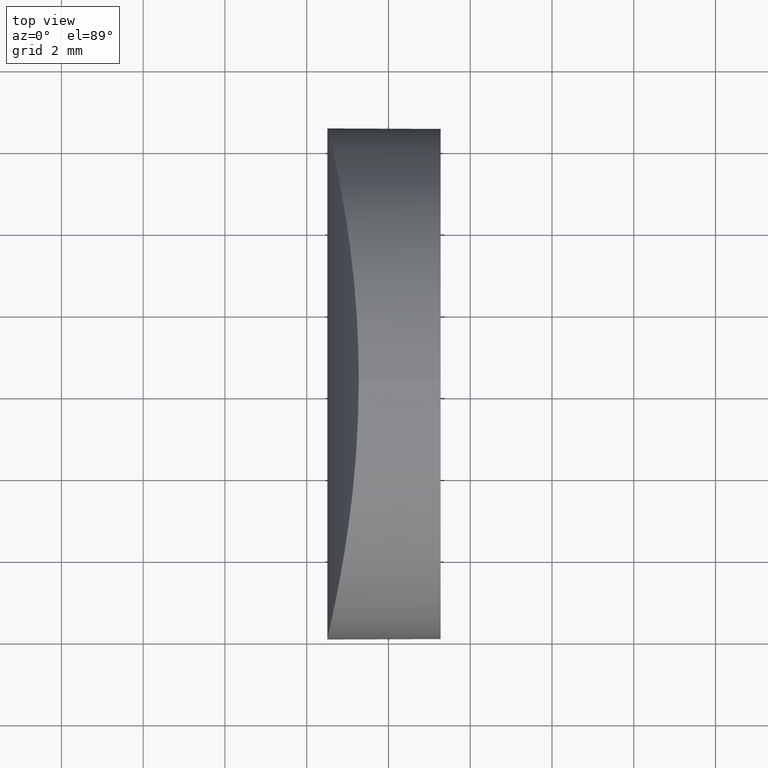
[diagram: clean part render]
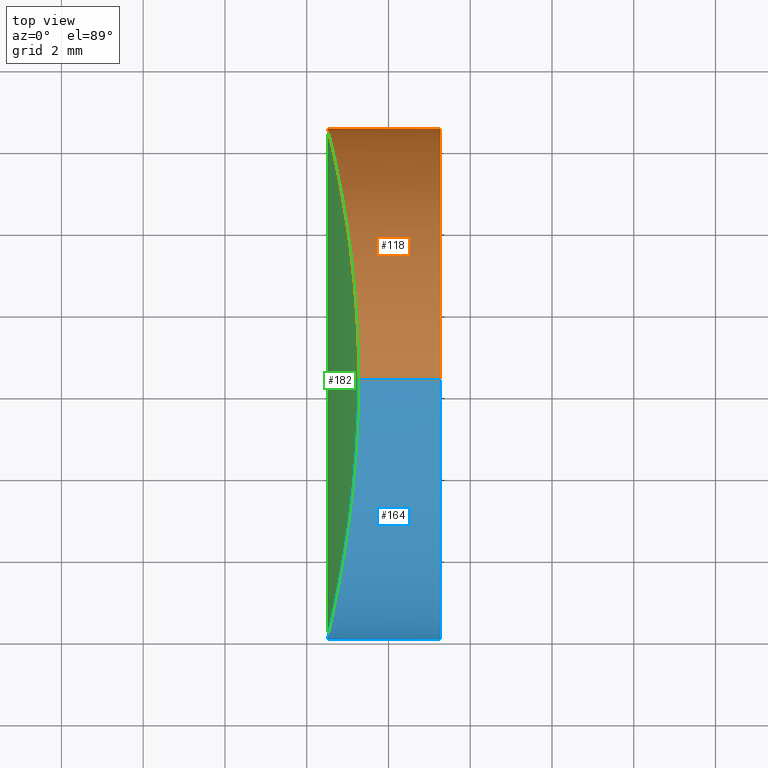
[diagram: same view with three faces highlighted in distinct colors, each labeled with its STEP entity id]
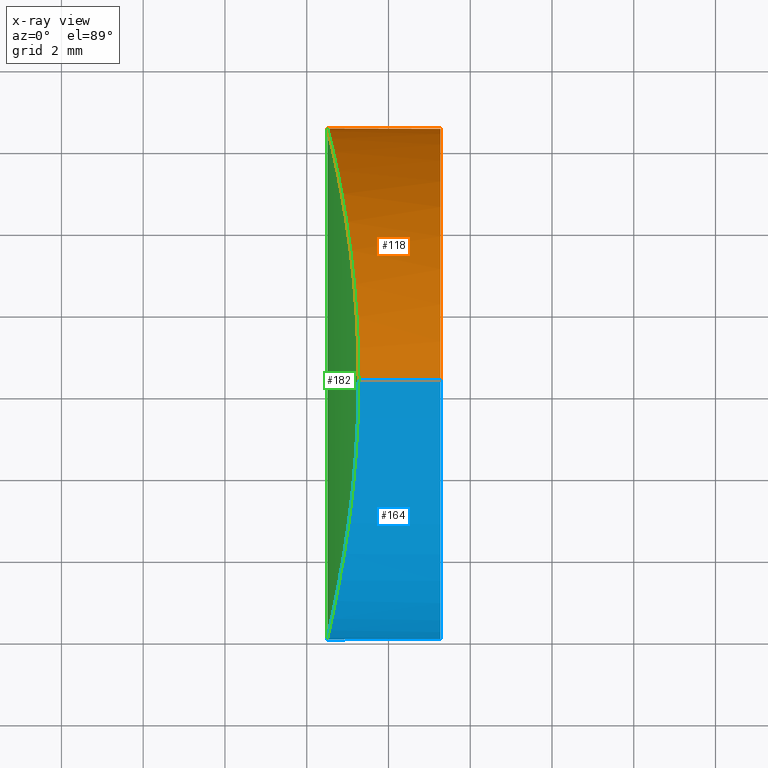
[diagram: x-ray of the same camera — body ghosted, the three highlighted faces saturated]
A machine part, top view with three faces highlighted in distinct colors.
The next image is the same camera in x-ray (body ghosted, the three faces saturated) — at least one of them is partly hidden behind the body in this view.
Their STEP definitions:

[orange] entity #118 — the highlighted cylindrical surface (partial cylindrical patch) has radius 6.25 mm, axis along (1, -0, -0).
#2 = VERTEX_POINT ( 'NONE', #114 ) ;
#3 = DIRECTION ( 'NONE',  ( 0.0000000000000000000, 0.0000000000000000000, -1.000000000000000000 ) ) ;
#5 = CARTESIAN_POINT ( 'NONE',  ( -21.30586645070837200, 11.67039100264360800, -3.138531112542940300 ) ) ;
#8 = CARTESIAN_POINT ( 'NONE',  ( -21.16417389232033800, 10.95727964302649600, 4.131426269803671200 ) ) ;
#9 = CARTESIAN_POINT ( 'NONE',  ( -21.34817441218076400, 11.86489820540312200, 2.775406840390553400 ) ) ;
#10 = CARTESIAN_POINT ( 'NONE',  ( -21.49479370718858100, 12.49999190187677200, 0.4144422193794029500 ) ) ;
#12 = CARTESIAN_POINT ( 'NONE',  ( -21.41701375810439600, 12.17035487733627600, 2.013485593041242100 ) ) ;
#15 = CARTESIAN_POINT ( 'NONE',  ( -20.73812095970066200, 7.071438208088231600, -6.209208244469303800 ) ) ;
#16 = CYLINDRICAL_SURFACE ( 'NONE', #212, 6.250000000000000000 ) ;
#17 = CARTESIAN_POINT ( 'NONE',  ( -20.80851331522088200, 8.272580157832534200, 5.917228932695594200 ) ) ;
#19 = CIRCLE ( 'NONE', #116, 6.250000000000000000 ) ;
#21 = CARTESIAN_POINT ( 'NONE',  ( -21.40097782816972200, 12.10036497371197200, 2.208527998700851900 ) ) ;
#22 = ORIENTED_EDGE ( 'NONE', *, *, #63, .T. ) ;
#24 = DIRECTION ( 'NONE',  ( 1.000000000000000000, -0.0000000000000000000, -2.775557561562888400E-016 ) ) ;
#28 = B_SPLINE_CURVE_WITH_KNOTS ( 'NONE', 3,
 ( #104, #174, #15, #87, #79, #129, #192, #75, #139, #85, #158, #54, #216, #5, #194, #41, #106, #47, #95, #197, #68, #10, #143, #96, #213, #12, #21, #9, #181, #70, #8, #198, #94, #175, #32, #172, #17, #33, #40, #178, #186, #149 ),
 .UNSPECIFIED., .F., .F.,
 ( 4, 2, 2, 2, 2, 2, 2, 2, 2, 2, 2, 2, 2, 2, 2, 2, 2, 2, 2, 2, 4 ),
 ( -0.009799750836385866200, -0.008574766934945129300, -0.007962274984224760800, -0.007349783033504391500, -0.006124799132063653600, -0.004899815230622913200, -0.003674831329182175400, -0.002449847427741437500, -0.001837355477021067300, -0.001224863526300697100, 1.203751400433161800E-007, 0.001225104276580783700, 0.001837596227301154000, 0.002450088178021525900, 0.003675072079462261100, 0.004900055980902994600, 0.006125039882343731600, 0.007350023783784468600, 0.007962515734504838800, 0.008575007685225209000, 0.009799991586665949400 ),
 .UNSPECIFIED. ) ;
#32 = CARTESIAN_POINT ( 'NONE',  ( -20.87837811100732200, 9.027279578909915600, 5.613778561066050400 ) ) ;
#33 = CARTESIAN_POINT ( 'NONE',  ( -20.78006567575936400, 7.880933177235406500, 6.036926843036991600 ) ) ;
#36 = VERTEX_POINT ( 'NONE', #119 ) ;
#38 = VECTOR ( 'NONE', #24, 1000.000000000000000 ) ;
#40 = CARTESIAN_POINT ( 'NONE',  ( -20.76777344929423600, 7.679955332826649400, 6.087710984723809600 ) ) ;
#41 = CARTESIAN_POINT ( 'NONE',  ( -21.40046951801921800, 12.09812232024502300, -2.214340388978075100 ) ) ;
#43 = LINE ( 'NONE', #187, #102 ) ;
#47 = CARTESIAN_POINT ( 'NONE',  ( -21.44404375308931400, 12.28693568348716500, -1.630904611153180400 ) ) ;
#49 = CARTESIAN_POINT ( 'NONE',  ( -20.72785767918521300, 6.250000000000000000, -6.249999999999999100 ) ) ;
#52 = DIRECTION ( 'NONE',  ( 1.000000000000000000, -2.465190328815661300E-032, -2.497546408665961200E-016 ) ) ;
#54 = CARTESIAN_POINT ( 'NONE',  ( -21.16377542104428100, 10.95512794692981600, -4.133876362842595000 ) ) ;
#55 = DIRECTION ( 'NONE',  ( 0.0000000000000000000, 0.0000000000000000000, -1.000000000000000000 ) ) ;
#58 = EDGE_LOOP ( 'NONE', ( #22, #155, #109, #126 ) ) ;
#63 = EDGE_CURVE ( 'NONE', #210, #2, #28, .T. ) ;
#68 = CARTESIAN_POINT ( 'NONE',  ( -21.49479762253177700, 12.50000809573625700, -0.4141979357271029500 ) ) ;
#70 = CARTESIAN_POINT ( 'NONE',  ( -21.21452486823813300, 11.21993532965685800, 3.811623268885517400 ) ) ;
#72 = FACE_OUTER_BOUND ( 'NONE', #58, .T. ) ;
#75 = CARTESIAN_POINT ( 'NONE',  ( -20.87810612438827800, 9.025149063411360500, -5.615021518692064000 ) ) ;
#79 = CARTESIAN_POINT ( 'NONE',  ( -20.77936002273541800, 7.870116150972267900, -6.039862870828043700 ) ) ;
#82 = LINE ( 'NONE', #144, #38 ) ;
#85 = CARTESIAN_POINT ( 'NONE',  ( -21.01354208633043500, 10.06130395080965900, -4.970177698852762800 ) ) ;
#87 = CARTESIAN_POINT ( 'NONE',  ( -20.76732383388122800, 7.671748285258144200, -6.089561868606702800 ) ) ;
#94 = CARTESIAN_POINT ( 'NONE',  ( -21.01485659724916400, 10.07021543418843200, 4.963557672766210500 ) ) ;
#95 = CARTESIAN_POINT ( 'NONE',  ( -21.45601113062215500, 12.33772466178595200, -1.429899056629324100 ) ) ;
#96 = CARTESIAN_POINT ( 'NONE',  ( -21.45643847222804000, 12.33953247581889600, 1.421875386041959700 ) ) ;
#102 = VECTOR ( 'NONE', #117, 1000.000000000000000 ) ;
#104 = CARTESIAN_POINT ( 'NONE',  ( -20.72785767918521300, 6.250000000000000000, -6.249999999999999100 ) ) ;
#105 = CARTESIAN_POINT ( 'NONE',  ( -18.72479566514874000, 6.250000000000000000, -6.995608218053836800E-018 ) ) ;
#106 = CARTESIAN_POINT ( 'NONE',  ( -21.41629311661322500, 12.16721821756611100, -2.022614857788070300 ) ) ;
#109 = ORIENTED_EDGE ( 'NONE', *, *, #134, .F. ) ;
#114 = CARTESIAN_POINT ( 'NONE',  ( -20.72785767918521300, 6.250000000000000900, 6.250000000000000900 ) ) ;
#115 = CARTESIAN_POINT ( 'NONE',  ( -18.72479566514874000, 6.250000000000000900, 6.250000000000000000 ) ) ;
#116 = AXIS2_PLACEMENT_3D ( 'NONE', #105, #52, #3 ) ;
#117 = DIRECTION ( 'NONE',  ( 1.000000000000000000, -0.0000000000000000000, -2.775557561562888400E-016 ) ) ;
#118 = ADVANCED_FACE ( 'NONE', ( #72 ), #16, .T. ) ;
#119 = CARTESIAN_POINT ( 'NONE',  ( -18.72479566514874000, 6.250000000000000000, -6.250000000000000000 ) ) ;
#122 = CARTESIAN_POINT ( 'NONE',  ( -31.42479566514873900, 6.250000000000000000, 3.517962494966814600E-015 ) ) ;
#126 = ORIENTED_EDGE ( 'NONE', *, *, #184, .F. ) ;
#129 = CARTESIAN_POINT ( 'NONE',  ( -20.80776473493467500, 8.263321460665823200, -5.920410166286693300 ) ) ;
#134 = EDGE_CURVE ( 'NONE', #36, #176, #19, .T. ) ;
#139 = CARTESIAN_POINT ( 'NONE',  ( -20.92057807005576500, 9.383355869263073900, -5.423171135063444800 ) ) ;
#143 = CARTESIAN_POINT ( 'NONE',  ( -21.48484410787328600, 12.45919552096470900, 0.8215427757406984500 ) ) ;
#144 = CARTESIAN_POINT ( 'NONE',  ( -31.42479566514873900, 6.250000000000000000, -6.249999999999996400 ) ) ;
#148 = DIRECTION ( 'NONE',  ( 1.000000000000000000, -0.0000000000000000000, -2.775557561562888400E-016 ) ) ;
#149 = CARTESIAN_POINT ( 'NONE',  ( -20.72785767918521300, 6.250000000000000900, 6.250000000000000900 ) ) ;
#155 = ORIENTED_EDGE ( 'NONE', *, *, #200, .T. ) ;
#158 = CARTESIAN_POINT ( 'NONE',  ( -21.06419762374073600, 10.38108909945601400, -4.707575345398564300 ) ) ;
#172 = CARTESIAN_POINT ( 'NONE',  ( -20.82471029405955000, 8.464271984447426800, 5.848146926755514800 ) ) ;
#174 = CARTESIAN_POINT ( 'NONE',  ( -20.72785767918521300, 6.664338960101471100, -6.249999999999999100 ) ) ;
#175 = CARTESIAN_POINT ( 'NONE',  ( -20.92116676950108100, 9.388310129681430600, 5.420512915253205200 ) ) ;
#176 = VERTEX_POINT ( 'NONE', #115 ) ;
#178 = CARTESIAN_POINT ( 'NONE',  ( -20.73812573501971100, 7.073560586923815000, 6.209205835635576600 ) ) ;
#181 = CARTESIAN_POINT ( 'NONE',  ( -21.30643541101659000, 11.67300286818599500, 3.133651068087724800 ) ) ;
#184 = EDGE_CURVE ( 'NONE', #210, #36, #82, .T. ) ;
#186 = CARTESIAN_POINT ( 'NONE',  ( -20.72785767918522000, 6.664316493220828100, 6.250000000000003600 ) ) ;
#187 = CARTESIAN_POINT ( 'NONE',  ( -31.42479566514873900, 6.250000000000000900, 6.250000000000003600 ) ) ;
#192 = CARTESIAN_POINT ( 'NONE',  ( -20.82417987707020400, 8.458339464282259400, -5.850435159488185400 ) ) ;
#194 = CARTESIAN_POINT ( 'NONE',  ( -21.34791696139040000, 11.86370114966581300, -2.777446943772468500 ) ) ;
#197 = CARTESIAN_POINT ( 'NONE',  ( -21.48484653581946800, 12.45922056375362900, -0.8234630957877252500 ) ) ;
#198 = CARTESIAN_POINT ( 'NONE',  ( -21.06459707886412100, 10.38353607084033700, 4.705427101925741900 ) ) ;
#200 = EDGE_CURVE ( 'NONE', #2, #176, #43, .T. ) ;
#210 = VERTEX_POINT ( 'NONE', #49 ) ;
#212 = AXIS2_PLACEMENT_3D ( 'NONE', #122, #148, #55 ) ;
#213 = CARTESIAN_POINT ( 'NONE',  ( -21.44472059214101700, 12.28982637839583500, 1.620254123839203000 ) ) ;
#216 = CARTESIAN_POINT ( 'NONE',  ( -21.21322092329946700, 11.21331088505217400, -3.820544624037571300 ) ) ;

[blue] entity #164 — the highlighted cylindrical surface (partial cylindrical patch) has radius 6.25 mm, axis along (1, -0, -0).
#2 = VERTEX_POINT ( 'NONE', #114 ) ;
#7 = DIRECTION ( 'NONE',  ( 0.0000000000000000000, 0.0000000000000000000, -1.000000000000000000 ) ) ;
#11 = AXIS2_PLACEMENT_3D ( 'NONE', #185, #89, #7 ) ;
#13 = CARTESIAN_POINT ( 'NONE',  ( -21.16374047592156100, 1.545061738486400300, 4.134090162972911200 ) ) ;
#18 = CARTESIAN_POINT ( 'NONE',  ( -21.06462675051439200, 2.116281220648554000, -4.705268556057330200 ) ) ;
#23 = CARTESIAN_POINT ( 'NONE',  ( -21.21456204230034400, 1.279873724516410700, -3.811376459171487600 ) ) ;
#24 = DIRECTION ( 'NONE',  ( 1.000000000000000000, -0.0000000000000000000, -2.775557561562888400E-016 ) ) ;
#25 = EDGE_CURVE ( 'NONE', #2, #210, #195, .T. ) ;
#26 = CARTESIAN_POINT ( 'NONE',  ( -21.01488295030750200, 2.429608762384676300, -4.963424025432611400 ) ) ;
#31 = CARTESIAN_POINT ( 'NONE',  ( -21.48483064271438900, 0.04084525041713622800, 0.8239491808157705100 ) ) ;
#36 = VERTEX_POINT ( 'NONE', #119 ) ;
#38 = VECTOR ( 'NONE', #24, 1000.000000000000000 ) ;
#39 = CARTESIAN_POINT ( 'NONE',  ( -21.16420901792156800, 1.542529723097471500, -4.131211290101712800 ) ) ;
#43 = LINE ( 'NONE', #187, #102 ) ;
#49 = CARTESIAN_POINT ( 'NONE',  ( -20.72785767918521300, 6.250000000000000000, -6.249999999999999100 ) ) ;
#53 = CARTESIAN_POINT ( 'NONE',  ( -20.80775632970720700, 4.236784566987645400, 5.920445820934968900 ) ) ;
#59 = CARTESIAN_POINT ( 'NONE',  ( -21.01351557662796700, 2.438873532781297800, 4.970311893388898600 ) ) ;
#60 = CARTESIAN_POINT ( 'NONE',  ( -20.92118614172030500, 3.111532877981449700, -5.420423543294214500 ) ) ;
#62 = CARTESIAN_POINT ( 'NONE',  ( -21.49480234549772100, -2.762992347182845500E-005, -0.4138785868602684600 ) ) ;
#66 = CARTESIAN_POINT ( 'NONE',  ( -21.34821112134781600, 0.6349341419721308300, -2.775071373197001400 ) ) ;
#69 = CARTESIAN_POINT ( 'NONE',  ( -21.48485986485580700, 0.04073921617253054000, -0.8210600362760974700 ) ) ;
#71 = ORIENTED_EDGE ( 'NONE', *, *, #184, .T. ) ;
#76 = DIRECTION ( 'NONE',  ( 1.000000000000000000, -0.0000000000000000000, -2.775557561562888400E-016 ) ) ;
#78 = CARTESIAN_POINT ( 'NONE',  ( -20.78007120409008500, 4.618980523797218600, -6.036903890673251300 ) ) ;
#82 = LINE ( 'NONE', #144, #38 ) ;
#88 = FACE_OUTER_BOUND ( 'NONE', #201, .T. ) ;
#89 = DIRECTION ( 'NONE',  ( 1.000000000000000000, -2.465190328815661300E-032, -2.497546408665961200E-016 ) ) ;
#92 = CARTESIAN_POINT ( 'NONE',  ( -21.30582796305364800, 0.8297910384093037900, 3.138842109562262700 ) ) ;
#98 = CARTESIAN_POINT ( 'NONE',  ( -20.82416986442955700, 4.041775380877767000, 5.850478138683616400 ) ) ;
#101 = CARTESIAN_POINT ( 'NONE',  ( -20.72785767918521300, 6.250000000000000000, -6.249999999999999100 ) ) ;
#102 = VECTOR ( 'NONE', #117, 1000.000000000000000 ) ;
#103 = CARTESIAN_POINT ( 'NONE',  ( -21.40101101131145700, 0.3994890328355071300, -2.208142398526401300 ) ) ;
#108 = CARTESIAN_POINT ( 'NONE',  ( -20.87809106208667800, 3.474990055246106400, 5.615088733525658100 ) ) ;
#110 = CARTESIAN_POINT ( 'NONE',  ( -20.77935456670329000, 4.629969707283917700, 6.039885507940336900 ) ) ;
#112 = CARTESIAN_POINT ( 'NONE',  ( -21.41626177624201300, 0.3329181873415035800, 2.023012567541158500 ) ) ;
#113 = CARTESIAN_POINT ( 'NONE',  ( -21.45646293540897200, 0.1603639123694421400, -1.421433110073935900 ) ) ;
#114 = CARTESIAN_POINT ( 'NONE',  ( -20.72785767918521300, 6.250000000000000900, 6.250000000000000900 ) ) ;
#115 = CARTESIAN_POINT ( 'NONE',  ( -18.72479566514874000, 6.250000000000000900, 6.250000000000000000 ) ) ;
#117 = DIRECTION ( 'NONE',  ( 1.000000000000000000, -0.0000000000000000000, -2.775557561562888400E-016 ) ) ;
#119 = CARTESIAN_POINT ( 'NONE',  ( -18.72479566514874000, 6.250000000000000000, -6.250000000000000000 ) ) ;
#120 = CIRCLE ( 'NONE', #11, 6.250000000000000000 ) ;
#123 = DIRECTION ( 'NONE',  ( 0.0000000000000000000, 0.0000000000000000000, -1.000000000000000000 ) ) ;
#127 = CARTESIAN_POINT ( 'NONE',  ( -20.73811984676170900, 5.428605947053043200, 6.209212625366155300 ) ) ;
#130 = CARTESIAN_POINT ( 'NONE',  ( -20.76731964010270900, 4.828327288434106600, 6.089579140260403800 ) ) ;
#131 = ORIENTED_EDGE ( 'NONE', *, *, #25, .T. ) ;
#133 = CARTESIAN_POINT ( 'NONE',  ( -20.76777771547988700, 4.819968212682320900, -6.087693409817561900 ) ) ;
#135 = CARTESIAN_POINT ( 'NONE',  ( -21.06416777632640000, 2.119094734092511700, 4.707734827317888300 ) ) ;
#137 = ORIENTED_EDGE ( 'NONE', *, *, #157, .F. ) ;
#138 = CARTESIAN_POINT ( 'NONE',  ( -21.44474762728233600, 0.2100582414126683800, -1.619825152859627500 ) ) ;
#141 = CARTESIAN_POINT ( 'NONE',  ( -20.80852167092028200, 4.227315000601245200, -5.917193465671531700 ) ) ;
#144 = CARTESIAN_POINT ( 'NONE',  ( -31.42479566514873900, 6.250000000000000000, -6.249999999999996400 ) ) ;
#146 = CARTESIAN_POINT ( 'NONE',  ( -21.30647299583362300, 0.8268195644690039500, -3.133346401445714000 ) ) ;
#147 = CARTESIAN_POINT ( 'NONE',  ( -20.72785767918521300, 6.250000000000000900, 6.250000000000000900 ) ) ;
#152 = CARTESIAN_POINT ( 'NONE',  ( -20.73812684917072200, 5.426395023739965900, -6.209201454436831500 ) ) ;
#156 = CARTESIAN_POINT ( 'NONE',  ( -21.49478897807191300, 2.765774980439216200E-005, 0.4147126481985671200 ) ) ;
#157 = EDGE_CURVE ( 'NONE', #176, #36, #120, .T. ) ;
#161 = CARTESIAN_POINT ( 'NONE',  ( -20.82472023068656600, 4.035614322162429900, -5.848104257565189800 ) ) ;
#164 = ADVANCED_FACE ( 'NONE', ( #88 ), #171, .T. ) ;
#165 = CARTESIAN_POINT ( 'NONE',  ( -20.72785767918520600, 5.835661039565358100, -6.249999999999998200 ) ) ;
#166 = CARTESIAN_POINT ( 'NONE',  ( -21.45598623699911700, 0.1623808018248132600, 1.430346544449107700 ) ) ;
#171 = CYLINDRICAL_SURFACE ( 'NONE', #180, 6.250000000000000000 ) ;
#173 = CARTESIAN_POINT ( 'NONE',  ( -21.34788025395273400, 0.6364665174889211400, 2.777782484009860400 ) ) ;
#176 = VERTEX_POINT ( 'NONE', #115 ) ;
#180 = AXIS2_PLACEMENT_3D ( 'NONE', #204, #76, #123 ) ;
#184 = EDGE_CURVE ( 'NONE', #210, #36, #82, .T. ) ;
#185 = CARTESIAN_POINT ( 'NONE',  ( -18.72479566514874000, 6.250000000000000000, -6.995608218053836800E-018 ) ) ;
#187 = CARTESIAN_POINT ( 'NONE',  ( -31.42479566514873900, 6.250000000000000900, 6.250000000000003600 ) ) ;
#189 = CARTESIAN_POINT ( 'NONE',  ( -21.41704531266809000, 0.3295078673486096000, -2.013082929284517200 ) ) ;
#191 = ORIENTED_EDGE ( 'NONE', *, *, #200, .F. ) ;
#193 = CARTESIAN_POINT ( 'NONE',  ( -20.87839316152075100, 3.472581445828122800, -5.613711385990449700 ) ) ;
#195 = B_SPLINE_CURVE_WITH_KNOTS ( 'NONE', 3,
 ( #147, #214, #127, #130, #110, #53, #98, #108, #196, #59, #135, #13, #205, #92, #173, #207, #112, #215, #166, #31, #156, #62, #69, #113, #138, #189, #103, #66, #146, #23, #39, #18, #26, #60, #193, #161, #141, #78, #133, #152, #165, #101 ),
 .UNSPECIFIED., .F., .F.,
 ( 4, 2, 2, 2, 2, 2, 2, 2, 2, 2, 2, 2, 2, 2, 2, 2, 2, 2, 2, 2, 4 ),
 ( 0.009799991586665949400, 0.01102497548909170600, 0.01163746744030458500, 0.01224995939151746600, 0.01347494329394322200, 0.01469992719636898000, 0.01592491109879473600, 0.01714989500122049400, 0.01776238695243337300, 0.01837487890364625200, 0.01959986280607200700, 0.02082484670849776100, 0.02143733865971064100, 0.02204983061092352000, 0.02327481451334927800, 0.02449979841577502900, 0.02572478231820078700, 0.02694976622062654500, 0.02756225817183942000, 0.02817475012305229900, 0.02939973402547805400 ),
 .UNSPECIFIED. ) ;
#196 = CARTESIAN_POINT ( 'NONE',  ( -20.92055921361587800, 3.116797491372088800, 5.423257997424226300 ) ) ;
#200 = EDGE_CURVE ( 'NONE', #2, #176, #43, .T. ) ;
#201 = EDGE_LOOP ( 'NONE', ( #191, #131, #71, #137 ) ) ;
#204 = CARTESIAN_POINT ( 'NONE',  ( -31.42479566514873900, 6.250000000000000000, 3.517962494966814600E-015 ) ) ;
#205 = CARTESIAN_POINT ( 'NONE',  ( -21.21318405731048200, 1.286878848383752100, 3.820788323166931300 ) ) ;
#207 = CARTESIAN_POINT ( 'NONE',  ( -21.40043657682973300, 0.4020226602293530100, 2.214722207290400500 ) ) ;
#210 = VERTEX_POINT ( 'NONE', #49 ) ;
#214 = CARTESIAN_POINT ( 'NONE',  ( -20.72785767918522000, 5.835683506446019700, 6.250000000000000900 ) ) ;
#215 = CARTESIAN_POINT ( 'NONE',  ( -21.44401640386351800, 0.2131811036444446200, 1.631335231866192000 ) ) ;

[green] entity #182 — the highlighted cylindrical surface (partial cylindrical patch) has radius 25.85 mm, axis along (-0, -1, -0).
#2 = VERTEX_POINT ( 'NONE', #114 ) ;
#5 = CARTESIAN_POINT ( 'NONE',  ( -21.30586645070837200, 11.67039100264360800, -3.138531112542940300 ) ) ;
#6 = FACE_OUTER_BOUND ( 'NONE', #107, .T. ) ;
#8 = CARTESIAN_POINT ( 'NONE',  ( -21.16417389232033800, 10.95727964302649600, 4.131426269803671200 ) ) ;
#9 = CARTESIAN_POINT ( 'NONE',  ( -21.34817441218076400, 11.86489820540312200, 2.775406840390553400 ) ) ;
#10 = CARTESIAN_POINT ( 'NONE',  ( -21.49479370718858100, 12.49999190187677200, 0.4144422193794029500 ) ) ;
#12 = CARTESIAN_POINT ( 'NONE',  ( -21.41701375810439600, 12.17035487733627600, 2.013485593041242100 ) ) ;
#13 = CARTESIAN_POINT ( 'NONE',  ( -21.16374047592156100, 1.545061738486400300, 4.134090162972911200 ) ) ;
#15 = CARTESIAN_POINT ( 'NONE',  ( -20.73812095970066200, 7.071438208088231600, -6.209208244469303800 ) ) ;
#17 = CARTESIAN_POINT ( 'NONE',  ( -20.80851331522088200, 8.272580157832534200, 5.917228932695594200 ) ) ;
#18 = CARTESIAN_POINT ( 'NONE',  ( -21.06462675051439200, 2.116281220648554000, -4.705268556057330200 ) ) ;
#21 = CARTESIAN_POINT ( 'NONE',  ( -21.40097782816972200, 12.10036497371197200, 2.208527998700851900 ) ) ;
#23 = CARTESIAN_POINT ( 'NONE',  ( -21.21456204230034400, 1.279873724516410700, -3.811376459171487600 ) ) ;
#25 = EDGE_CURVE ( 'NONE', #2, #210, #195, .T. ) ;
#26 = CARTESIAN_POINT ( 'NONE',  ( -21.01488295030750200, 2.429608762384676300, -4.963424025432611400 ) ) ;
#28 = B_SPLINE_CURVE_WITH_KNOTS ( 'NONE', 3,
 ( #104, #174, #15, #87, #79, #129, #192, #75, #139, #85, #158, #54, #216, #5, #194, #41, #106, #47, #95, #197, #68, #10, #143, #96, #213, #12, #21, #9, #181, #70, #8, #198, #94, #175, #32, #172, #17, #33, #40, #178, #186, #149 ),
 .UNSPECIFIED., .F., .F.,
 ( 4, 2, 2, 2, 2, 2, 2, 2, 2, 2, 2, 2, 2, 2, 2, 2, 2, 2, 2, 2, 4 ),
 ( -0.009799750836385866200, -0.008574766934945129300, -0.007962274984224760800, -0.007349783033504391500, -0.006124799132063653600, -0.004899815230622913200, -0.003674831329182175400, -0.002449847427741437500, -0.001837355477021067300, -0.001224863526300697100, 1.203751400433161800E-007, 0.001225104276580783700, 0.001837596227301154000, 0.002450088178021525900, 0.003675072079462261100, 0.004900055980902994600, 0.006125039882343731600, 0.007350023783784468600, 0.007962515734504838800, 0.008575007685225209000, 0.009799991586665949400 ),
 .UNSPECIFIED. ) ;
#31 = CARTESIAN_POINT ( 'NONE',  ( -21.48483064271438900, 0.04084525041713622800, 0.8239491808157705100 ) ) ;
#32 = CARTESIAN_POINT ( 'NONE',  ( -20.87837811100732200, 9.027279578909915600, 5.613778561066050400 ) ) ;
#33 = CARTESIAN_POINT ( 'NONE',  ( -20.78006567575936400, 7.880933177235406500, 6.036926843036991600 ) ) ;
#35 = ORIENTED_EDGE ( 'NONE', *, *, #25, .F. ) ;
#39 = CARTESIAN_POINT ( 'NONE',  ( -21.16420901792156800, 1.542529723097471500, -4.131211290101712800 ) ) ;
#40 = CARTESIAN_POINT ( 'NONE',  ( -20.76777344929423600, 7.679955332826649400, 6.087710984723809600 ) ) ;
#41 = CARTESIAN_POINT ( 'NONE',  ( -21.40046951801921800, 12.09812232024502300, -2.214340388978075100 ) ) ;
#47 = CARTESIAN_POINT ( 'NONE',  ( -21.44404375308931400, 12.28693568348716500, -1.630904611153180400 ) ) ;
#49 = CARTESIAN_POINT ( 'NONE',  ( -20.72785767918521300, 6.250000000000000000, -6.249999999999999100 ) ) ;
#53 = CARTESIAN_POINT ( 'NONE',  ( -20.80775632970720700, 4.236784566987645400, 5.920445820934968900 ) ) ;
#54 = CARTESIAN_POINT ( 'NONE',  ( -21.16377542104428100, 10.95512794692981600, -4.133876362842595000 ) ) ;
#59 = CARTESIAN_POINT ( 'NONE',  ( -21.01351557662796700, 2.438873532781297800, 4.970311893388898600 ) ) ;
#60 = CARTESIAN_POINT ( 'NONE',  ( -20.92118614172030500, 3.111532877981449700, -5.420423543294214500 ) ) ;
#62 = CARTESIAN_POINT ( 'NONE',  ( -21.49480234549772100, -2.762992347182845500E-005, -0.4138785868602684600 ) ) ;
#63 = EDGE_CURVE ( 'NONE', #210, #2, #28, .T. ) ;
#66 = CARTESIAN_POINT ( 'NONE',  ( -21.34821112134781600, 0.6349341419721308300, -2.775071373197001400 ) ) ;
#68 = CARTESIAN_POINT ( 'NONE',  ( -21.49479762253177700, 12.50000809573625700, -0.4141979357271029500 ) ) ;
#69 = CARTESIAN_POINT ( 'NONE',  ( -21.48485986485580700, 0.04073921617253054000, -0.8210600362760974700 ) ) ;
#70 = CARTESIAN_POINT ( 'NONE',  ( -21.21452486823813300, 11.21993532965685800, 3.811623268885517400 ) ) ;
#75 = CARTESIAN_POINT ( 'NONE',  ( -20.87810612438827800, 9.025149063411360500, -5.615021518692064000 ) ) ;
#78 = CARTESIAN_POINT ( 'NONE',  ( -20.78007120409008500, 4.618980523797218600, -6.036903890673251300 ) ) ;
#79 = CARTESIAN_POINT ( 'NONE',  ( -20.77936002273541800, 7.870116150972267900, -6.039862870828043700 ) ) ;
#85 = CARTESIAN_POINT ( 'NONE',  ( -21.01354208633043500, 10.06130395080965900, -4.970177698852762800 ) ) ;
#87 = CARTESIAN_POINT ( 'NONE',  ( -20.76732383388122800, 7.671748285258144200, -6.089561868606702800 ) ) ;
#90 = DIRECTION ( 'NONE',  ( 0.0000000000000000000, 0.0000000000000000000, -1.000000000000000000 ) ) ;
#92 = CARTESIAN_POINT ( 'NONE',  ( -21.30582796305364800, 0.8297910384093037900, 3.138842109562262700 ) ) ;
#94 = CARTESIAN_POINT ( 'NONE',  ( -21.01485659724916400, 10.07021543418843200, 4.963557672766210500 ) ) ;
#95 = CARTESIAN_POINT ( 'NONE',  ( -21.45601113062215500, 12.33772466178595200, -1.429899056629324100 ) ) ;
#96 = CARTESIAN_POINT ( 'NONE',  ( -21.45643847222804000, 12.33953247581889600, 1.421875386041959700 ) ) ;
#98 = CARTESIAN_POINT ( 'NONE',  ( -20.82416986442955700, 4.041775380877767000, 5.850478138683616400 ) ) ;
#101 = CARTESIAN_POINT ( 'NONE',  ( -20.72785767918521300, 6.250000000000000000, -6.249999999999999100 ) ) ;
#103 = CARTESIAN_POINT ( 'NONE',  ( -21.40101101131145700, 0.3994890328355071300, -2.208142398526401300 ) ) ;
#104 = CARTESIAN_POINT ( 'NONE',  ( -20.72785767918521300, 6.250000000000000000, -6.249999999999999100 ) ) ;
#106 = CARTESIAN_POINT ( 'NONE',  ( -21.41629311661322500, 12.16721821756611100, -2.022614857788070300 ) ) ;
#107 = EDGE_LOOP ( 'NONE', ( #208, #35 ) ) ;
#108 = CARTESIAN_POINT ( 'NONE',  ( -20.87809106208667800, 3.474990055246106400, 5.615088733525658100 ) ) ;
#110 = CARTESIAN_POINT ( 'NONE',  ( -20.77935456670329000, 4.629969707283917700, 6.039885507940336900 ) ) ;
#112 = CARTESIAN_POINT ( 'NONE',  ( -21.41626177624201300, 0.3329181873415035800, 2.023012567541158500 ) ) ;
#113 = CARTESIAN_POINT ( 'NONE',  ( -21.45646293540897200, 0.1603639123694421400, -1.421433110073935900 ) ) ;
#114 = CARTESIAN_POINT ( 'NONE',  ( -20.72785767918521300, 6.250000000000000900, 6.250000000000000900 ) ) ;
#127 = CARTESIAN_POINT ( 'NONE',  ( -20.73811984676170900, 5.428605947053043200, 6.209212625366155300 ) ) ;
#128 = AXIS2_PLACEMENT_3D ( 'NONE', #169, #209, #90 ) ;
#129 = CARTESIAN_POINT ( 'NONE',  ( -20.80776473493467500, 8.263321460665823200, -5.920410166286693300 ) ) ;
#130 = CARTESIAN_POINT ( 'NONE',  ( -20.76731964010270900, 4.828327288434106600, 6.089579140260403800 ) ) ;
#133 = CARTESIAN_POINT ( 'NONE',  ( -20.76777771547988700, 4.819968212682320900, -6.087693409817561900 ) ) ;
#135 = CARTESIAN_POINT ( 'NONE',  ( -21.06416777632640000, 2.119094734092511700, 4.707734827317888300 ) ) ;
#138 = CARTESIAN_POINT ( 'NONE',  ( -21.44474762728233600, 0.2100582414126683800, -1.619825152859627500 ) ) ;
#139 = CARTESIAN_POINT ( 'NONE',  ( -20.92057807005576500, 9.383355869263073900, -5.423171135063444800 ) ) ;
#141 = CARTESIAN_POINT ( 'NONE',  ( -20.80852167092028200, 4.227315000601245200, -5.917193465671531700 ) ) ;
#143 = CARTESIAN_POINT ( 'NONE',  ( -21.48484410787328600, 12.45919552096470900, 0.8215427757406984500 ) ) ;
#146 = CARTESIAN_POINT ( 'NONE',  ( -21.30647299583362300, 0.8268195644690039500, -3.133346401445714000 ) ) ;
#147 = CARTESIAN_POINT ( 'NONE',  ( -20.72785767918521300, 6.250000000000000900, 6.250000000000000900 ) ) ;
#149 = CARTESIAN_POINT ( 'NONE',  ( -20.72785767918521300, 6.250000000000000900, 6.250000000000000900 ) ) ;
#152 = CARTESIAN_POINT ( 'NONE',  ( -20.73812684917072200, 5.426395023739965900, -6.209201454436831500 ) ) ;
#156 = CARTESIAN_POINT ( 'NONE',  ( -21.49478897807191300, 2.765774980439216200E-005, 0.4147126481985671200 ) ) ;
#158 = CARTESIAN_POINT ( 'NONE',  ( -21.06419762374073600, 10.38108909945601400, -4.707575345398564300 ) ) ;
#161 = CARTESIAN_POINT ( 'NONE',  ( -20.82472023068656600, 4.035614322162429900, -5.848104257565189800 ) ) ;
#165 = CARTESIAN_POINT ( 'NONE',  ( -20.72785767918520600, 5.835661039565358100, -6.249999999999998200 ) ) ;
#166 = CARTESIAN_POINT ( 'NONE',  ( -21.45598623699911700, 0.1623808018248132600, 1.430346544449107700 ) ) ;
#168 = CYLINDRICAL_SURFACE ( 'NONE', #128, 25.84999999999999800 ) ;
#169 = CARTESIAN_POINT ( 'NONE',  ( 4.355204334851265500, 12.50000000000000000, 4.286263797015675000E-017 ) ) ;
#172 = CARTESIAN_POINT ( 'NONE',  ( -20.82471029405955000, 8.464271984447426800, 5.848146926755514800 ) ) ;
#173 = CARTESIAN_POINT ( 'NONE',  ( -21.34788025395273400, 0.6364665174889211400, 2.777782484009860400 ) ) ;
#174 = CARTESIAN_POINT ( 'NONE',  ( -20.72785767918521300, 6.664338960101471100, -6.249999999999999100 ) ) ;
#175 = CARTESIAN_POINT ( 'NONE',  ( -20.92116676950108100, 9.388310129681430600, 5.420512915253205200 ) ) ;
#178 = CARTESIAN_POINT ( 'NONE',  ( -20.73812573501971100, 7.073560586923815000, 6.209205835635576600 ) ) ;
#181 = CARTESIAN_POINT ( 'NONE',  ( -21.30643541101659000, 11.67300286818599500, 3.133651068087724800 ) ) ;
#182 = ADVANCED_FACE ( 'NONE', ( #6 ), #168, .T. ) ;
#186 = CARTESIAN_POINT ( 'NONE',  ( -20.72785767918522000, 6.664316493220828100, 6.250000000000003600 ) ) ;
#189 = CARTESIAN_POINT ( 'NONE',  ( -21.41704531266809000, 0.3295078673486096000, -2.013082929284517200 ) ) ;
#192 = CARTESIAN_POINT ( 'NONE',  ( -20.82417987707020400, 8.458339464282259400, -5.850435159488185400 ) ) ;
#193 = CARTESIAN_POINT ( 'NONE',  ( -20.87839316152075100, 3.472581445828122800, -5.613711385990449700 ) ) ;
#194 = CARTESIAN_POINT ( 'NONE',  ( -21.34791696139040000, 11.86370114966581300, -2.777446943772468500 ) ) ;
#195 = B_SPLINE_CURVE_WITH_KNOTS ( 'NONE', 3,
 ( #147, #214, #127, #130, #110, #53, #98, #108, #196, #59, #135, #13, #205, #92, #173, #207, #112, #215, #166, #31, #156, #62, #69, #113, #138, #189, #103, #66, #146, #23, #39, #18, #26, #60, #193, #161, #141, #78, #133, #152, #165, #101 ),
 .UNSPECIFIED., .F., .F.,
 ( 4, 2, 2, 2, 2, 2, 2, 2, 2, 2, 2, 2, 2, 2, 2, 2, 2, 2, 2, 2, 4 ),
 ( 0.009799991586665949400, 0.01102497548909170600, 0.01163746744030458500, 0.01224995939151746600, 0.01347494329394322200, 0.01469992719636898000, 0.01592491109879473600, 0.01714989500122049400, 0.01776238695243337300, 0.01837487890364625200, 0.01959986280607200700, 0.02082484670849776100, 0.02143733865971064100, 0.02204983061092352000, 0.02327481451334927800, 0.02449979841577502900, 0.02572478231820078700, 0.02694976622062654500, 0.02756225817183942000, 0.02817475012305229900, 0.02939973402547805400 ),
 .UNSPECIFIED. ) ;
#196 = CARTESIAN_POINT ( 'NONE',  ( -20.92055921361587800, 3.116797491372088800, 5.423257997424226300 ) ) ;
#197 = CARTESIAN_POINT ( 'NONE',  ( -21.48484653581946800, 12.45922056375362900, -0.8234630957877252500 ) ) ;
#198 = CARTESIAN_POINT ( 'NONE',  ( -21.06459707886412100, 10.38353607084033700, 4.705427101925741900 ) ) ;
#205 = CARTESIAN_POINT ( 'NONE',  ( -21.21318405731048200, 1.286878848383752100, 3.820788323166931300 ) ) ;
#207 = CARTESIAN_POINT ( 'NONE',  ( -21.40043657682973300, 0.4020226602293530100, 2.214722207290400500 ) ) ;
#208 = ORIENTED_EDGE ( 'NONE', *, *, #63, .F. ) ;
#209 = DIRECTION ( 'NONE',  ( -0.0000000000000000000, -1.000000000000000000, -0.0000000000000000000 ) ) ;
#210 = VERTEX_POINT ( 'NONE', #49 ) ;
#213 = CARTESIAN_POINT ( 'NONE',  ( -21.44472059214101700, 12.28982637839583500, 1.620254123839203000 ) ) ;
#214 = CARTESIAN_POINT ( 'NONE',  ( -20.72785767918522000, 5.835683506446019700, 6.250000000000000900 ) ) ;
#215 = CARTESIAN_POINT ( 'NONE',  ( -21.44401640386351800, 0.2131811036444446200, 1.631335231866192000 ) ) ;
#216 = CARTESIAN_POINT ( 'NONE',  ( -21.21322092329946700, 11.21331088505217400, -3.820544624037571300 ) ) ;